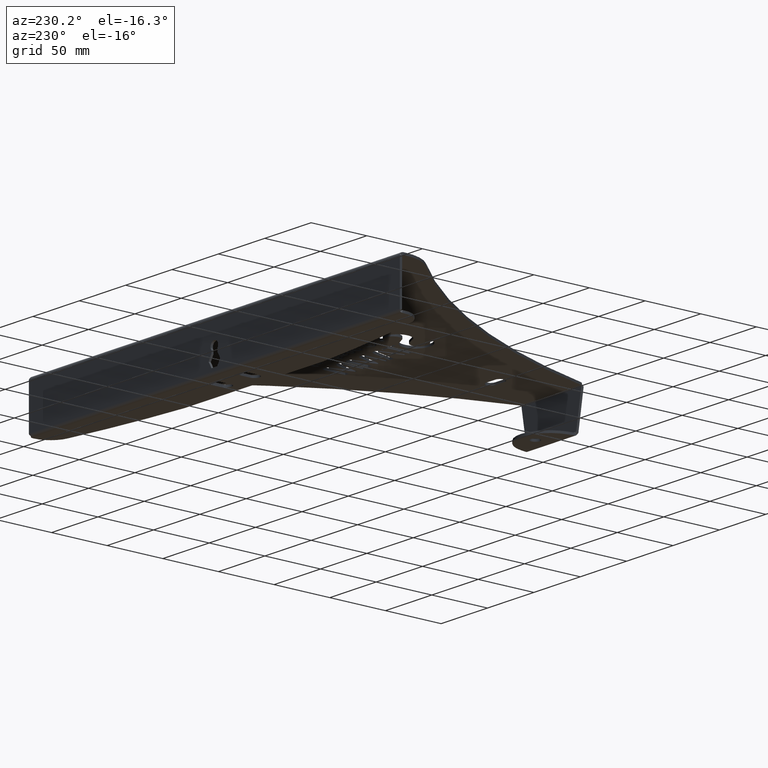
[diagram: clean part render]
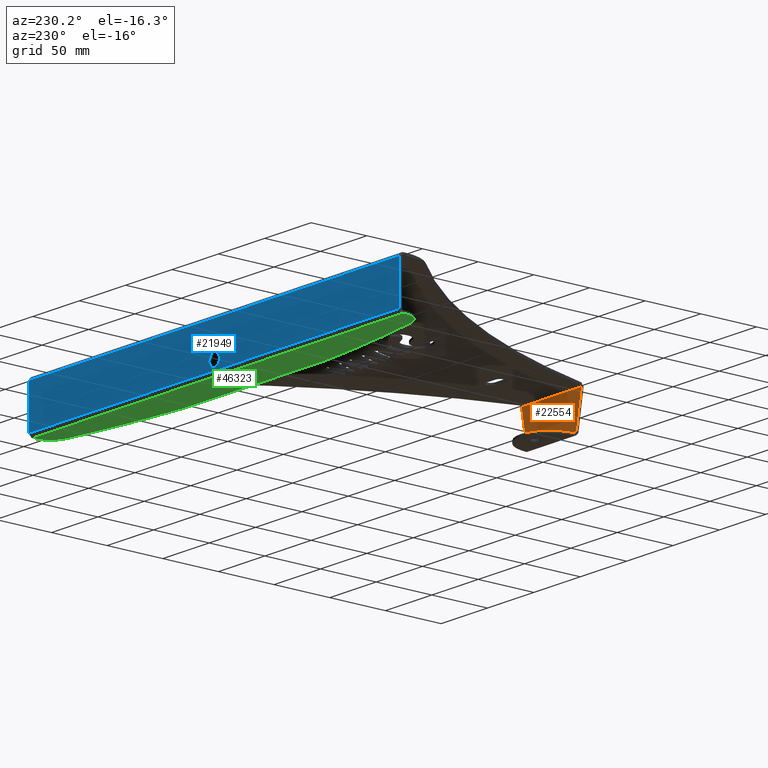
[diagram: same view with three faces highlighted in distinct colors, each labeled with its STEP entity id]
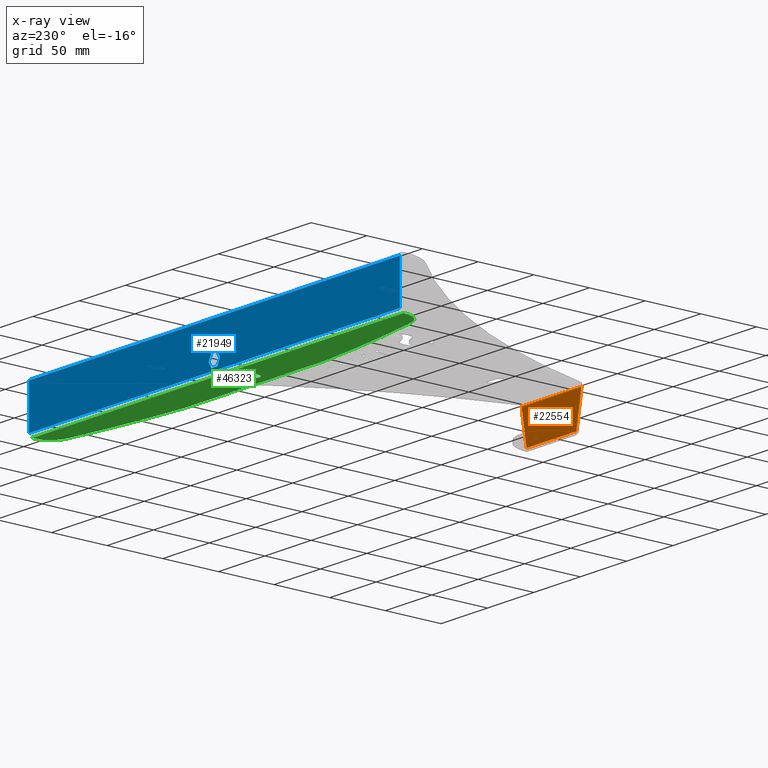
[diagram: x-ray of the same camera — body ghosted, the three highlighted faces saturated]
A machine part, auxiliary view with three faces highlighted in distinct colors.
The next image is the same camera in x-ray (body ghosted, the three faces saturated) — at least one of them is partly hidden behind the body in this view.
Their STEP definitions:

[orange] entity #22554 — the highlighted planar face has unit normal (0, -1, -0).
#1947 = CARTESIAN_POINT ( 'NONE',  ( 26.81323968797228119, -157.4724153085119838, -31.86920354350057494 ) ) ;
#2112 = CARTESIAN_POINT ( 'NONE',  ( -58.57926923119855189, -157.4724153085126090, 148.2849022864574522 ) ) ;
#3019 = LINE ( 'NONE', #51904, #41384 ) ;
#3579 = PLANE ( 'NONE',  #35884 ) ;
#4475 = CARTESIAN_POINT ( 'NONE',  ( 32.25631314567224450, -157.4724153085120690, -0.9999999999999731326 ) ) ;
#6815 = DIRECTION ( 'NONE',  ( 0.1736481776669135668, -3.438437891990171722E-15, 0.9848077530122109069 ) ) ;
#9685 = EDGE_CURVE ( 'NONE', #12406, #50080, #50123, .T. ) ;
#10064 = VECTOR ( 'NONE', #6815, 1000.000000000000227 ) ;
#11638 = DIRECTION ( 'NONE',  ( 1.000000000000000000, 0.000000000000000000, 0.000000000000000000 ) ) ;
#12406 = VERTEX_POINT ( 'NONE', #52070 ) ;
#16940 = FACE_OUTER_BOUND ( 'NONE', #18026, .T. ) ;
#18026 = EDGE_LOOP ( 'NONE', ( #20206, #24862, #53188, #39798 ) ) ;
#20206 = ORIENTED_EDGE ( 'NONE', *, *, #34960, .F. ) ;
#21220 = VERTEX_POINT ( 'NONE', #1947 ) ;
#21264 = EDGE_CURVE ( 'NONE', #40762, #50080, #3019, .T. ) ;
#21585 = EDGE_CURVE ( 'NONE', #21220, #12406, #25321, .T. ) ;
#22554 = ADVANCED_FACE ( 'NONE', ( #16940 ), #3579, .F. ) ;
#23048 = DIRECTION ( 'NONE',  ( -1.000000000000000000, 1.502156707636936140E-30, -4.302347805572578209E-16 ) ) ;
#24862 = ORIENTED_EDGE ( 'NONE', *, *, #21585, .T. ) ;
#25321 = LINE ( 'NONE', #49359, #51696 ) ;
#27663 = VECTOR ( 'NONE', #30559, 1000.000000000000114 ) ;
#28898 = DIRECTION ( 'NONE',  ( -1.000000000000000000, -9.035468619098689457E-31, 2.587861065897175959E-16 ) ) ;
#30559 = DIRECTION ( 'NONE',  ( -0.1736481776669123733, -3.438437891990172906E-15, 0.9848077530122112400 ) ) ;
#31123 = CARTESIAN_POINT ( 'NONE',  ( 58.57926923119886453, -157.4724153085126090, 148.2849022864573385 ) ) ;
#34960 = EDGE_CURVE ( 'NONE', #21220, #40762, #36948, .T. ) ;
#35884 = AXIS2_PLACEMENT_3D ( 'NONE', #44886, #36333, #11638 ) ;
#36333 = DIRECTION ( 'NONE',  ( 0.000000000000000000, -1.000000000000000000, -3.491481338843133355E-15 ) ) ;
#36948 = LINE ( 'NONE', #31123, #10064 ) ;
#39798 = ORIENTED_EDGE ( 'NONE', *, *, #21264, .F. ) ;
#40762 = VERTEX_POINT ( 'NONE', #4475 ) ;
#41384 = VECTOR ( 'NONE', #23048, 1000.000000000000000 ) ;
#44886 = CARTESIAN_POINT ( 'NONE',  ( 0.000000000000000000, -157.4724153085126375, 158.6140079621018799 ) ) ;
#49359 = CARTESIAN_POINT ( 'NONE',  ( -4.929440867624054658E-14, -157.4724153085119838, -31.86920354350053586 ) ) ;
#50080 = VERTEX_POINT ( 'NONE', #50319 ) ;
#50123 = LINE ( 'NONE', #2112, #27663 ) ;
#50319 = CARTESIAN_POINT ( 'NONE',  ( -32.25631314567209529, -157.4724153085120690, -1.000000000000028644 ) ) ;
#51696 = VECTOR ( 'NONE', #28898, 1000.000000000000000 ) ;
#51904 = CARTESIAN_POINT ( 'NONE',  ( 6.867149768943930227E-14, -157.4724153085120690, -1.000000000000000888 ) ) ;
#52070 = CARTESIAN_POINT ( 'NONE',  ( -26.81323968797218171, -157.4724153085119838, -31.86920354350052165 ) ) ;
#53188 = ORIENTED_EDGE ( 'NONE', *, *, #9685, .T. ) ;

[blue] entity #21949 — the highlighted planar face has unit normal (0, 1, -0).
#416 = CARTESIAN_POINT ( 'NONE',  ( -6.177647880332857611, 145.3234548399180710, -31.07920366291824621 ) ) ;
#630 = VERTEX_POINT ( 'NONE', #416 ) ;
#830 = CARTESIAN_POINT ( 'NONE',  ( -80.64612640512453368, 145.3234548399281039, 97.90398470441094503 ) ) ;
#1877 = VERTEX_POINT ( 'NONE', #33331 ) ;
#2491 = CARTESIAN_POINT ( 'NONE',  ( 3.249999999996785682, 145.3234548399168773, -26.00836878751833225 ) ) ;
#2822 = LINE ( 'NONE', #41977, #34186 ) ;
#3385 = VERTEX_POINT ( 'NONE', #38937 ) ;
#3451 = EDGE_CURVE ( 'NONE', #36088, #14513, #27567, .T. ) ;
#4002 = VECTOR ( 'NONE', #20558, 1000.000000000000000 ) ;
#4113 = CARTESIAN_POINT ( 'NONE',  ( 1.868671883897825446E-11, 145.3234548399174173, -1.000000000025702551 ) ) ;
#4164 = ORIENTED_EDGE ( 'NONE', *, *, #24482, .T. ) ;
#4256 = LINE ( 'NONE', #30027, #26678 ) ;
#4505 = VECTOR ( 'NONE', #17464, 1000.000000000000000 ) ;
#5014 = EDGE_CURVE ( 'NONE', #3385, #7021, #5602, .T. ) ;
#5038 = AXIS2_PLACEMENT_3D ( 'NONE', #20501, #43620, #31436 ) ;
#5228 = ORIENTED_EDGE ( 'NONE', *, *, #10653, .F. ) ;
#5270 = CIRCLE ( 'NONE', #29395, 4.049999999999893241 ) ;
#5602 = LINE ( 'NONE', #42050, #36959 ) ;
#5811 = LINE ( 'NONE', #13166, #4505 ) ;
#7021 = VERTEX_POINT ( 'NONE', #30448 ) ;
#7250 = VERTEX_POINT ( 'NONE', #19873 ) ;
#10653 = EDGE_CURVE ( 'NONE', #45120, #13027, #46776, .T. ) ;
#11040 = EDGE_LOOP ( 'NONE', ( #29945, #4164, #5228, #27502 ) ) ;
#11865 = DIRECTION ( 'NONE',  ( 1.285083151003618696E-13, 1.000000000000000000, -3.491481338843133355E-15 ) ) ;
#11886 = CARTESIAN_POINT ( 'NONE',  ( -200.0000000000046043, 145.3234548399429684, -38.85840734643600314 ) ) ;
#11973 = EDGE_CURVE ( 'NONE', #14513, #630, #40247, .T. ) ;
#12079 = CARTESIAN_POINT ( 'NONE',  ( 200.0000000000187015, 145.3234548398922072, 144.4650474934814781 ) ) ;
#13027 = VERTEX_POINT ( 'NONE', #11886 ) ;
#13166 = CARTESIAN_POINT ( 'NONE',  ( 1.870261961401864091E-11, 145.3234548399172752, -38.85840734643597472 ) ) ;
#13372 = EDGE_CURVE ( 'NONE', #7021, #7250, #4256, .T. ) ;
#13561 = EDGE_CURVE ( 'NONE', #38298, #40531, #15121, .T. ) ;
#13808 = FACE_OUTER_BOUND ( 'NONE', #11040, .T. ) ;
#13913 = CARTESIAN_POINT ( 'NONE',  ( -199.9999999999813269, 145.3234548399435937, 144.4650474935328930 ) ) ;
#14513 = VERTEX_POINT ( 'NONE', #52586 ) ;
#14953 = DIRECTION ( 'NONE',  ( -1.285083151003623239E-13, -3.491481338826618947E-15, -1.000000000000000000 ) ) ;
#15029 = VECTOR ( 'NONE', #37706, 999.9999999999998863 ) ;
#15121 = LINE ( 'NONE', #12079, #41954 ) ;
#15998 = DIRECTION ( 'NONE',  ( 1.000000000000000000, -1.302113423943119147E-13, -1.284980352575446470E-13 ) ) ;
#16845 = CARTESIAN_POINT ( 'NONE',  ( 71.37965458465716040, 145.3234548399085782, 103.2539847043913994 ) ) ;
#17134 = ORIENTED_EDGE ( 'NONE', *, *, #33280, .T. ) ;
#17464 = DIRECTION ( 'NONE',  ( -1.000000000000000000, 1.285083151003618696E-13, -8.673617379884010820E-17 ) ) ;
#17969 = VECTOR ( 'NONE', #43755, 1000.000000000000000 ) ;
#18429 = CIRCLE ( 'NONE', #5038, 4.049999999999894129 ) ;
#18460 = EDGE_CURVE ( 'NONE', #35024, #3385, #22553, .T. ) ;
#19068 = PLANE ( 'NONE',  #36200 ) ;
#19873 = CARTESIAN_POINT ( 'NONE',  ( -3.088823940169038273, 145.3234548399176447, -36.42920366291868817 ) ) ;
#19950 = CARTESIAN_POINT ( 'NONE',  ( 199.9999999999999716, 145.3234548398916957, -1.000000000051404214 ) ) ;
#20501 = CARTESIAN_POINT ( 'NONE',  ( -0.002524643446192213411, 145.3234548399173320, -20.92920287602695240 ) ) ;
#20511 = VECTOR ( 'NONE', #33948, 1000.000000000000000 ) ;
#20558 = DIRECTION ( 'NONE',  ( -1.000000000000000000, 1.285083151003618696E-13, 0.000000000000000000 ) ) ;
#21949 = ADVANCED_FACE ( 'NONE', ( #35586, #13808 ), #19068, .T. ) ;
#22553 = LINE ( 'NONE', #31447, #46930 ) ;
#23331 = CARTESIAN_POINT ( 'NONE',  ( -3.249999999981251886, 145.3234548399183268, 144.4650474935075977 ) ) ;
#24482 = EDGE_CURVE ( 'NONE', #40531, #13027, #5811, .T. ) ;
#24872 = ORIENTED_EDGE ( 'NONE', *, *, #13372, .F. ) ;
#25384 = DIRECTION ( 'NONE',  ( -1.000000000000000000, 1.285083151003623239E-13, 1.285083151003618696E-13 ) ) ;
#25447 = CARTESIAN_POINT ( 'NONE',  ( 3.249999999997127631, 145.3234548399169057, -23.34920366291945371 ) ) ;
#26195 = VECTOR ( 'NONE', #49610, 1000.000000000000114 ) ;
#26678 = VECTOR ( 'NONE', #25384, 1000.000000000000000 ) ;
#26750 = ORIENTED_EDGE ( 'NONE', *, *, #11973, .T. ) ;
#26850 = EDGE_LOOP ( 'NONE', ( #37265, #49434, #44707, #26750, #17134, #24872, #33812, #43447, #51823 ) ) ;
#27087 = LINE ( 'NONE', #4113, #4002 ) ;
#27407 = CARTESIAN_POINT ( 'NONE',  ( -3.250000000002871925, 145.3234548399177299, -23.34920366291862237 ) ) ;
#27502 = ORIENTED_EDGE ( 'NONE', *, *, #43598, .F. ) ;
#27567 = LINE ( 'NONE', #23331, #17969 ) ;
#27634 = CARTESIAN_POINT ( 'NONE',  ( 1.868671883897832231E-11, 145.3234548399179005, 144.4650474935071998 ) ) ;
#28103 = CARTESIAN_POINT ( 'NONE',  ( 199.9999999999951399, 145.3234548398915535, -38.85840734643598182 ) ) ;
#29395 = AXIS2_PLACEMENT_3D ( 'NONE', #40641, #11865, #15998 ) ;
#29830 = DIRECTION ( 'NONE',  ( -1.285083151003623239E-13, -3.491481338826618947E-15, -1.000000000000000000 ) ) ;
#29945 = ORIENTED_EDGE ( 'NONE', *, *, #13561, .T. ) ;
#30027 = CARTESIAN_POINT ( 'NONE',  ( -4.559696588475786051E-12, 145.3234548399172752, -36.42920366291907186 ) ) ;
#30448 = CARTESIAN_POINT ( 'NONE',  ( 3.088823940159932668, 145.3234548399168773, -36.42920366291946266 ) ) ;
#31436 = DIRECTION ( 'NONE',  ( 1.000000000000000000, -1.302113423943118895E-13, -1.284980352575446218E-13 ) ) ;
#31447 = CARTESIAN_POINT ( 'NONE',  ( -71.37965458463034452, 145.3234548399269102, 103.2539847044098025 ) ) ;
#31804 = DIRECTION ( 'NONE',  ( 0.4999999999998887557, -6.727786908644432796E-14, -0.8660254037845028785 ) ) ;
#33280 = EDGE_CURVE ( 'NONE', #630, #7250, #36109, .T. ) ;
#33331 = CARTESIAN_POINT ( 'NONE',  ( -2.037312370476316935E-12, 145.3234548399173605, -16.87920366291906049 ) ) ;
#33812 = ORIENTED_EDGE ( 'NONE', *, *, #5014, .F. ) ;
#33948 = DIRECTION ( 'NONE',  ( -1.285083151003623239E-13, -3.491481338826618947E-15, -1.000000000000000000 ) ) ;
#34186 = VECTOR ( 'NONE', #29830, 1000.000000000000000 ) ;
#34221 = DIRECTION ( 'NONE',  ( -0.5000000000001115774, 6.123044601391804647E-14, -0.8660254037843742037 ) ) ;
#35024 = VERTEX_POINT ( 'NONE', #2491 ) ;
#35586 = FACE_BOUND ( 'NONE', #26850, .T. ) ;
#36088 = VERTEX_POINT ( 'NONE', #27407 ) ;
#36109 = LINE ( 'NONE', #830, #15029 ) ;
#36200 = AXIS2_PLACEMENT_3D ( 'NONE', #27634, #47700, #47883 ) ;
#36420 = EDGE_CURVE ( 'NONE', #43123, #35024, #2822, .T. ) ;
#36959 = VECTOR ( 'NONE', #34221, 1000.000000000000000 ) ;
#37265 = ORIENTED_EDGE ( 'NONE', *, *, #51354, .F. ) ;
#37706 = DIRECTION ( 'NONE',  ( 0.4999999999998889777, -6.727786908644435320E-14, -0.8660254037845027675 ) ) ;
#38298 = VERTEX_POINT ( 'NONE', #19950 ) ;
#38937 = CARTESIAN_POINT ( 'NONE',  ( 6.177647880325111807, 145.3234548399164794, -31.07920366291985914 ) ) ;
#40247 = LINE ( 'NONE', #16845, #26195 ) ;
#40531 = VERTEX_POINT ( 'NONE', #28103 ) ;
#40641 = CARTESIAN_POINT ( 'NONE',  ( 0.002524643441070024280, 145.3234548399173320, -20.92920287602695240 ) ) ;
#41954 = VECTOR ( 'NONE', #14953, 1000.000000000000000 ) ;
#41977 = CARTESIAN_POINT ( 'NONE',  ( 3.250000000018693047, 145.3234548399174741, 144.4650474935067734 ) ) ;
#42050 = CARTESIAN_POINT ( 'NONE',  ( 80.64612640514997111, 145.3234548399073844, 97.90398470439021139 ) ) ;
#42786 = CARTESIAN_POINT ( 'NONE',  ( -199.9999999999998863, 145.3234548399687753, -0.9999999999614870294 ) ) ;
#43123 = VERTEX_POINT ( 'NONE', #25447 ) ;
#43447 = ORIENTED_EDGE ( 'NONE', *, *, #18460, .F. ) ;
#43598 = EDGE_CURVE ( 'NONE', #38298, #45120, #27087, .T. ) ;
#43620 = DIRECTION ( 'NONE',  ( -1.285083151003618696E-13, -1.000000000000000000, 3.491481338843133355E-15 ) ) ;
#43755 = DIRECTION ( 'NONE',  ( -1.288344933169630091E-13, -3.491481338826577137E-15, -1.000000000000000000 ) ) ;
#44707 = ORIENTED_EDGE ( 'NONE', *, *, #3451, .T. ) ;
#45120 = VERTEX_POINT ( 'NONE', #42786 ) ;
#46776 = LINE ( 'NONE', #13913, #20511 ) ;
#46930 = VECTOR ( 'NONE', #31804, 999.9999999999998863 ) ;
#47700 = DIRECTION ( 'NONE',  ( 1.285083151003618696E-13, 1.000000000000000000, -3.491481338843133355E-15 ) ) ;
#47883 = DIRECTION ( 'NONE',  ( 1.000000000000000000, -1.285083151003623239E-13, -1.285083151003618696E-13 ) ) ;
#48041 = EDGE_CURVE ( 'NONE', #1877, #36088, #18429, .T. ) ;
#49434 = ORIENTED_EDGE ( 'NONE', *, *, #48041, .T. ) ;
#49610 = DIRECTION ( 'NONE',  ( -0.5000000000001114664, 6.123044601391802122E-14, -0.8660254037843743147 ) ) ;
#51354 = EDGE_CURVE ( 'NONE', #1877, #43123, #5270, .T. ) ;
#51823 = ORIENTED_EDGE ( 'NONE', *, *, #36420, .F. ) ;
#52586 = CARTESIAN_POINT ( 'NONE',  ( -3.250000000003195666, 145.3234548399177299, -26.00836878751750092 ) ) ;

[green] entity #46323 — the highlighted planar face has unit normal (0, -0, -1).
#147 = DIRECTION ( 'NONE',  ( 2.575370472435167812E-13, 1.000000000000000000, -6.982962677686255667E-15 ) ) ;
#189 = VERTEX_POINT ( 'NONE', #9247 ) ;
#386 = LINE ( 'NONE', #4110, #996 ) ;
#996 = VECTOR ( 'NONE', #45419, 1000.000000000000000 ) ;
#1325 = EDGE_CURVE ( 'NONE', #42177, #15707, #17876, .T. ) ;
#1521 = CIRCLE ( 'NONE', #20121, 4.500000000000003553 ) ;
#1895 = LINE ( 'NONE', #6148, #22363 ) ;
#1923 = DIRECTION ( 'NONE',  ( -2.571033663745225795E-13, -1.000000000000000000, 6.982962677686255667E-15 ) ) ;
#2046 = CARTESIAN_POINT ( 'NONE',  ( 4.227704750325600266E-11, 328.7885023334502534, -41.85840734643722527 ) ) ;
#2631 = VERTEX_POINT ( 'NONE', #28388 ) ;
#3245 = AXIS2_PLACEMENT_3D ( 'NONE', #2046, #43017, #18533 ) ;
#3897 = EDGE_CURVE ( 'NONE', #20932, #13072, #1895, .T. ) ;
#3960 = DIRECTION ( 'NONE',  ( 8.673617379793698572E-17, -6.982962677686277755E-15, -1.000000000000000000 ) ) ;
#4110 = CARTESIAN_POINT ( 'NONE',  ( -1.431288148016879350E-11, 108.6827535001571476, -41.85840734643566918 ) ) ;
#4557 = CIRCLE ( 'NONE', #27397, 18.00000000000004263 ) ;
#4561 = DIRECTION ( 'NONE',  ( 1.000000000000000000, -2.621359919253839532E-13, 0.000000000000000000 ) ) ;
#5648 = ORIENTED_EDGE ( 'NONE', *, *, #47655, .F. ) ;
#5700 = EDGE_CURVE ( 'NONE', #29492, #30923, #386, .T. ) ;
#6148 = CARTESIAN_POINT ( 'NONE',  ( 19.50000000004234479, 328.7885023334451944, -41.85840734643722527 ) ) ;
#6228 = ORIENTED_EDGE ( 'NONE', *, *, #5700, .F. ) ;
#7330 = CARTESIAN_POINT ( 'NONE',  ( -19.50000000001088907, 121.8942511770293464, -41.85840734643578287 ) ) ;
#7487 = DIRECTION ( 'NONE',  ( 2.573202068090196803E-13, 1.000000000000000000, -6.982962677686255667E-15 ) ) ;
#7540 = CARTESIAN_POINT ( 'NONE',  ( -10.50000000001088196, 121.8942511770270443, -41.85840734643578287 ) ) ;
#7829 = CIRCLE ( 'NONE', #47785, 4.500000000000003553 ) ;
#8301 = CARTESIAN_POINT ( 'NONE',  ( -0.002120238889093051336, 1115.894408531697081, -41.85840734644272487 ) ) ;
#8325 = VECTOR ( 'NONE', #7487, 1000.000000000000000 ) ;
#8674 = DIRECTION ( 'NONE',  ( 8.673617379793698572E-17, -6.982962677686277755E-15, -1.000000000000000000 ) ) ;
#8844 = CARTESIAN_POINT ( 'NONE',  ( 14.99999999999111822, 129.8942511770205499, -41.85840734643581129 ) ) ;
#9247 = CARTESIAN_POINT ( 'NONE',  ( -200.0000000000056843, 142.3234548399429684, -41.85840734643598182 ) ) ;
#10004 = EDGE_CURVE ( 'NONE', #17488, #30923, #39177, .T. ) ;
#10679 = DIRECTION ( 'NONE',  ( -8.673617379793698572E-17, 6.982962677686277755E-15, 1.000000000000000000 ) ) ;
#10812 = VECTOR ( 'NONE', #35425, 1000.000000000000000 ) ;
#12198 = FACE_OUTER_BOUND ( 'NONE', #51394, .T. ) ;
#12317 = EDGE_CURVE ( 'NONE', #27808, #189, #38940, .T. ) ;
#12365 = ORIENTED_EDGE ( 'NONE', *, *, #20045, .F. ) ;
#12447 = DIRECTION ( 'NONE',  ( -8.673617379793698572E-17, 6.982962677686277755E-15, 1.000000000000000000 ) ) ;
#13072 = VERTEX_POINT ( 'NONE', #37618 ) ;
#13620 = CARTESIAN_POINT ( 'NONE',  ( -19.50000000000882849, 129.8942511770294459, -41.85840734643583971 ) ) ;
#14261 = CARTESIAN_POINT ( 'NONE',  ( -182.0000000000060254, 140.7324877398436058, -41.85840734643594629 ) ) ;
#15392 = EDGE_CURVE ( 'NONE', #20407, #17488, #39511, .T. ) ;
#15460 = ORIENTED_EDGE ( 'NONE', *, *, #33220, .F. ) ;
#15707 = VERTEX_POINT ( 'NONE', #7540 ) ;
#15770 = EDGE_CURVE ( 'NONE', #43500, #33181, #49693, .T. ) ;
#15881 = AXIS2_PLACEMENT_3D ( 'NONE', #29295, #37537, #21231 ) ;
#17488 = VERTEX_POINT ( 'NONE', #51923 ) ;
#17876 = CIRCLE ( 'NONE', #44484, 4.500000000000003553 ) ;
#18533 = DIRECTION ( 'NONE',  ( 1.000000000000000000, -2.571033663745225795E-13, 8.673617379974342789E-17 ) ) ;
#19286 = EDGE_CURVE ( 'NONE', #27808, #20407, #50683, .T. ) ;
#19718 = CARTESIAN_POINT ( 'NONE',  ( 0.002120239378629042073, 1115.894408531697081, -41.85840734644272487 ) ) ;
#19802 = VECTOR ( 'NONE', #1923, 1000.000000000000000 ) ;
#19891 = FACE_BOUND ( 'NONE', #32613, .T. ) ;
#20045 = EDGE_CURVE ( 'NONE', #189, #24817, #48014, .T. ) ;
#20086 = DIRECTION ( 'NONE',  ( 1.000000000000000000, -2.286399892297352978E-13, 8.931249579286535810E-17 ) ) ;
#20112 = EDGE_CURVE ( 'NONE', #15707, #38637, #31364, .T. ) ;
#20121 = AXIS2_PLACEMENT_3D ( 'NONE', #8844, #8674, #25101 ) ;
#20352 = VERTEX_POINT ( 'NONE', #13620 ) ;
#20407 = VERTEX_POINT ( 'NONE', #49978 ) ;
#20932 = VERTEX_POINT ( 'NONE', #52480 ) ;
#21195 = ORIENTED_EDGE ( 'NONE', *, *, #28951, .F. ) ;
#21231 = DIRECTION ( 'NONE',  ( 1.000000000000000000, -2.559680862330220116E-13, 0.000000000000000000 ) ) ;
#22142 = ORIENTED_EDGE ( 'NONE', *, *, #1325, .T. ) ;
#22363 = VECTOR ( 'NONE', #51415, 1000.000000000000000 ) ;
#22574 = CARTESIAN_POINT ( 'NONE',  ( -75.00000000001431033, 108.6827535001764176, -41.85840734643566918 ) ) ;
#22841 = CARTESIAN_POINT ( 'NONE',  ( -199.9999999999577369, 328.7885023335016399, -41.85840734643725369 ) ) ;
#22901 = AXIS2_PLACEMENT_3D ( 'NONE', #8301, #40472, #20086 ) ;
#23025 = EDGE_CURVE ( 'NONE', #33181, #13072, #1521, .T. ) ;
#23983 = CARTESIAN_POINT ( 'NONE',  ( 10.49999999998905231, 121.8942511770216299, -41.85840734643578287 ) ) ;
#24063 = ORIENTED_EDGE ( 'NONE', *, *, #15392, .T. ) ;
#24075 = ORIENTED_EDGE ( 'NONE', *, *, #23025, .F. ) ;
#24205 = VECTOR ( 'NONE', #147, 1000.000000000000000 ) ;
#24654 = CARTESIAN_POINT ( 'NONE',  ( -19.49999999995760547, 328.7885023334552557, -41.85840734643722527 ) ) ;
#24817 = VERTEX_POINT ( 'NONE', #52161 ) ;
#25101 = DIRECTION ( 'NONE',  ( 1.000000000000000000, -2.590520390792030076E-13, 0.000000000000000000 ) ) ;
#27169 = ORIENTED_EDGE ( 'NONE', *, *, #15770, .F. ) ;
#27397 = AXIS2_PLACEMENT_3D ( 'NONE', #14261, #10679, #47188 ) ;
#27668 = EDGE_LOOP ( 'NONE', ( #50922, #38788, #5648, #22142 ) ) ;
#27808 = VERTEX_POINT ( 'NONE', #35922 ) ;
#28236 = CARTESIAN_POINT ( 'NONE',  ( 10.50000000004229150, 328.7885023334475250, -41.85840734643722527 ) ) ;
#28388 = CARTESIAN_POINT ( 'NONE',  ( -185.3023808827681762, 123.0380174028944396, -41.85840734643581129 ) ) ;
#28951 = EDGE_CURVE ( 'NONE', #24817, #2631, #4557, .T. ) ;
#29052 = CARTESIAN_POINT ( 'NONE',  ( -15.00000000001088729, 121.8942511770281811, -41.85840734643578287 ) ) ;
#29295 = CARTESIAN_POINT ( 'NONE',  ( 14.99999999998905764, 121.8942511770204931, -41.85840734643575445 ) ) ;
#29492 = VERTEX_POINT ( 'NONE', #22574 ) ;
#30923 = VERTEX_POINT ( 'NONE', #52721 ) ;
#31364 = LINE ( 'NONE', #43458, #8325 ) ;
#31651 = CARTESIAN_POINT ( 'NONE',  ( 1.831473842475312240E-11, 142.3234548399172752, -41.85840734643594629 ) ) ;
#32073 = CARTESIAN_POINT ( 'NONE',  ( 181.9999999999938609, 140.7324877397499563, -41.85840734643592498 ) ) ;
#32613 = EDGE_LOOP ( 'NONE', ( #24075, #27169, #15460, #32933 ) ) ;
#32933 = ORIENTED_EDGE ( 'NONE', *, *, #3897, .T. ) ;
#33181 = VERTEX_POINT ( 'NONE', #47776 ) ;
#33220 = EDGE_CURVE ( 'NONE', #20932, #43500, #50926, .T. ) ;
#33487 = DIRECTION ( 'NONE',  ( -2.571033663745225795E-13, -1.000000000000000000, 6.982962677686255667E-15 ) ) ;
#34761 = CIRCLE ( 'NONE', #22901, 1009.999999999999545 ) ;
#34803 = PLANE ( 'NONE',  #3245 ) ;
#35234 = CARTESIAN_POINT ( 'NONE',  ( -15.00000000000882849, 129.8942511770282522, -41.85840734643583971 ) ) ;
#35408 = DIRECTION ( 'NONE',  ( -8.673617379793698572E-17, 6.982962677686277755E-15, 1.000000000000000000 ) ) ;
#35425 = DIRECTION ( 'NONE',  ( -1.000000000000000000, 1.285083151003618696E-13, -8.673617379884004657E-17 ) ) ;
#35922 = CARTESIAN_POINT ( 'NONE',  ( 199.9999999999943441, 142.3234548398915251, -41.85840734643592498 ) ) ;
#36308 = DIRECTION ( 'NONE',  ( 2.573202068090196803E-13, 1.000000000000000000, -6.982962677686255667E-15 ) ) ;
#36536 = DIRECTION ( 'NONE',  ( 1.000000000000000000, -2.575100626561120805E-13, 0.000000000000000000 ) ) ;
#37537 = DIRECTION ( 'NONE',  ( 8.673617379793698572E-17, -6.982962677686277755E-15, -1.000000000000000000 ) ) ;
#37618 = CARTESIAN_POINT ( 'NONE',  ( 19.49999999999112177, 129.8942511770193846, -41.85840734643583971 ) ) ;
#38053 = AXIS2_PLACEMENT_3D ( 'NONE', #32073, #3960, #36536 ) ;
#38637 = VERTEX_POINT ( 'NONE', #52306 ) ;
#38788 = ORIENTED_EDGE ( 'NONE', *, *, #43932, .T. ) ;
#38940 = LINE ( 'NONE', #31651, #10812 ) ;
#39177 = CIRCLE ( 'NONE', #49235, 1009.999999999999545 ) ;
#39461 = VECTOR ( 'NONE', #36308, 1000.000000000000000 ) ;
#39511 = CIRCLE ( 'NONE', #38053, 18.00000000000004263 ) ;
#39774 = VECTOR ( 'NONE', #33487, 1000.000000000000000 ) ;
#40472 = DIRECTION ( 'NONE',  ( -8.673617379793698572E-17, 6.982962677686277755E-15, 1.000000000000000000 ) ) ;
#40608 = DIRECTION ( 'NONE',  ( 8.673617379793698572E-17, -6.982962677686277755E-15, -1.000000000000000000 ) ) ;
#42177 = VERTEX_POINT ( 'NONE', #7330 ) ;
#43017 = DIRECTION ( 'NONE',  ( 8.673617379794807908E-17, -6.982962677686277755E-15, -1.000000000000000000 ) ) ;
#43458 = CARTESIAN_POINT ( 'NONE',  ( -10.49999999995764455, 328.7885023334529251, -41.85840734643722527 ) ) ;
#43500 = VERTEX_POINT ( 'NONE', #23983 ) ;
#43932 = EDGE_CURVE ( 'NONE', #38637, #20352, #7829, .T. ) ;
#44484 = AXIS2_PLACEMENT_3D ( 'NONE', #29052, #12447, #4561 ) ;
#44577 = ORIENTED_EDGE ( 'NONE', *, *, #51457, .F. ) ;
#45419 = DIRECTION ( 'NONE',  ( 1.000000000000000000, -2.571033663745225795E-13, 8.673617379974342789E-17 ) ) ;
#45447 = ORIENTED_EDGE ( 'NONE', *, *, #19286, .T. ) ;
#45601 = ORIENTED_EDGE ( 'NONE', *, *, #12317, .F. ) ;
#46013 = CARTESIAN_POINT ( 'NONE',  ( 200.0000000000422915, 328.7885023333988670, -41.85840734643719685 ) ) ;
#46323 = ADVANCED_FACE ( 'NONE', ( #12198, #51921, #19891 ), #34803, .T. ) ;
#47188 = DIRECTION ( 'NONE',  ( 1.000000000000000000, -2.575100626561120805E-13, 0.000000000000000000 ) ) ;
#47406 = DIRECTION ( 'NONE',  ( 1.000000000000000000, -2.528841333868410156E-13, 0.000000000000000000 ) ) ;
#47655 = EDGE_CURVE ( 'NONE', #42177, #20352, #48583, .T. ) ;
#47776 = CARTESIAN_POINT ( 'NONE',  ( 10.49999999999111111, 129.8942511770216868, -41.85840734643583971 ) ) ;
#47785 = AXIS2_PLACEMENT_3D ( 'NONE', #35234, #35408, #47406 ) ;
#48014 = LINE ( 'NONE', #22841, #19802 ) ;
#48583 = LINE ( 'NONE', #24654, #24205 ) ;
#49235 = AXIS2_PLACEMENT_3D ( 'NONE', #19718, #40608, #52831 ) ;
#49693 = LINE ( 'NONE', #28236, #39461 ) ;
#49732 = ORIENTED_EDGE ( 'NONE', *, *, #10004, .T. ) ;
#49978 = CARTESIAN_POINT ( 'NONE',  ( 199.9999999999939462, 140.7324877397453236, -41.85840734643589656 ) ) ;
#50683 = LINE ( 'NONE', #46013, #39774 ) ;
#50922 = ORIENTED_EDGE ( 'NONE', *, *, #20112, .T. ) ;
#50926 = CIRCLE ( 'NONE', #15881, 4.500000000000003553 ) ;
#51394 = EDGE_LOOP ( 'NONE', ( #45601, #45447, #24063, #49732, #6228, #44577, #21195, #12365 ) ) ;
#51415 = DIRECTION ( 'NONE',  ( 2.575370472435167812E-13, 1.000000000000000000, -6.982962677686255667E-15 ) ) ;
#51457 = EDGE_CURVE ( 'NONE', #2631, #29492, #34761, .T. ) ;
#51921 = FACE_BOUND ( 'NONE', #27668, .T. ) ;
#51923 = CARTESIAN_POINT ( 'NONE',  ( 185.3023808827469168, 123.0380174027992695, -41.85840734643575445 ) ) ;
#52161 = CARTESIAN_POINT ( 'NONE',  ( -200.0000000000060822, 140.7324877398482101, -41.85840734643594629 ) ) ;
#52306 = CARTESIAN_POINT ( 'NONE',  ( -10.50000000000882316, 129.8942511770271153, -41.85840734643583971 ) ) ;
#52480 = CARTESIAN_POINT ( 'NONE',  ( 19.49999999998906119, 121.8942511770193278, -41.85840734643578287 ) ) ;
#52721 = CARTESIAN_POINT ( 'NONE',  ( 74.99999999998568967, 108.6827535001378635, -41.85840734643566918 ) ) ;
#52831 = DIRECTION ( 'NONE',  ( 1.000000000000000000, -2.570001417399621153E-13, 8.931249579286535810E-17 ) ) ;